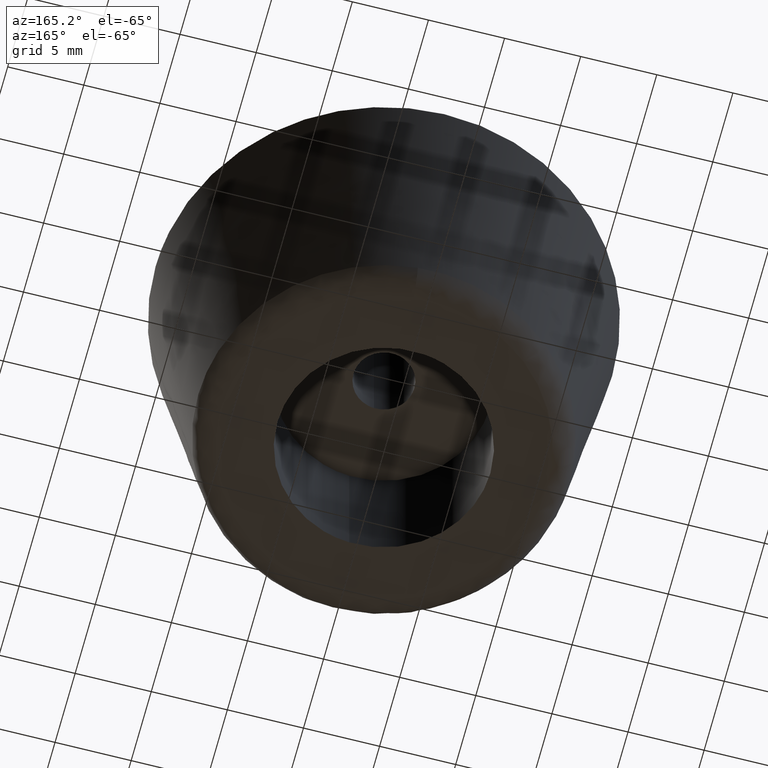
[diagram: clean part render]
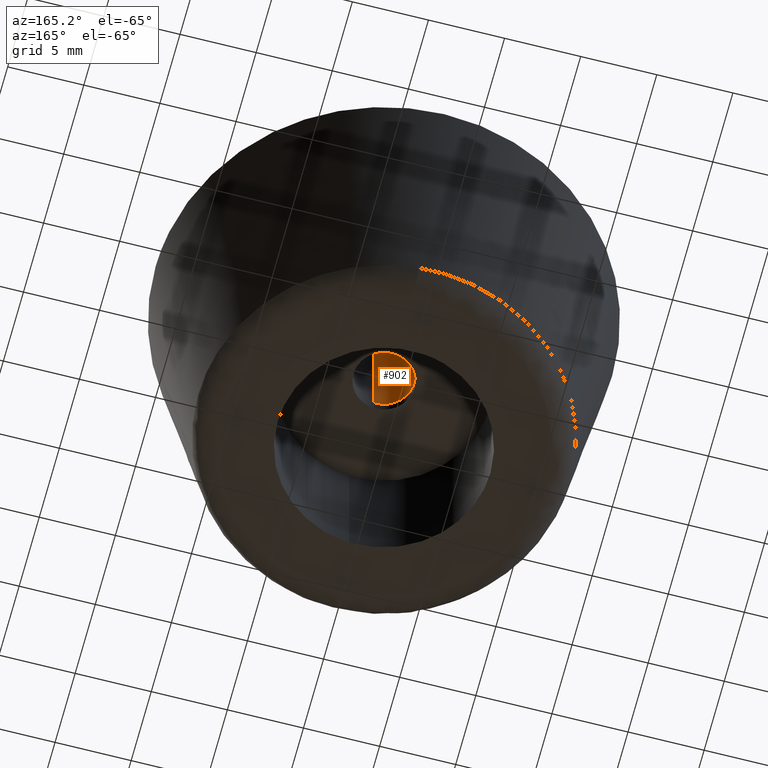
[diagram: same view with one face highlighted and labeled with its STEP entity id]
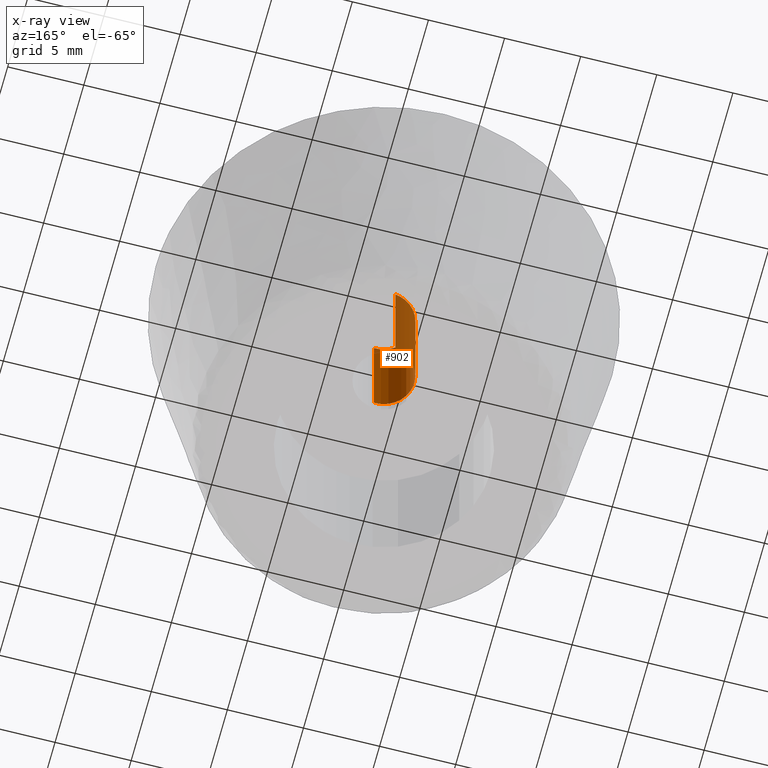
[diagram: x-ray of the same camera — body ghosted, the highlighted face saturated]
A machine part, auxiliary view. The second image highlights one B-rep face of the part: STEP entity #902.
The next image is the same camera in x-ray: the body ghosted, the highlighted face saturated — about 38% of this face is hidden behind the body in this view.
In plain terms, the highlighted face is a freeform B-spline surface patch.
Its self-contained STEP definition (entity closure, byte-faithful):
#739=CARTESIAN_POINT('',(-0.236068469328979,1.986019052725495,19.0));
#740=VERTEX_POINT('',#739);
#758=CARTESIAN_POINT('',(-0.236068469328979,1.986019052725495,10.800000000000001));
#759=VERTEX_POINT('',#758);
#760=CARTESIAN_POINT('',(-0.236068469328979,1.986019052725495,19.0));
#761=CARTESIAN_POINT('',(-0.236068469328979,1.986019052725495,10.800000000000001));
#762=QUASI_UNIFORM_CURVE('',1,(#760,#761),.UNSPECIFIED.,.F.,.U.);
#763=EDGE_CURVE('',#740,#759,#762,.T.);
#782=CARTESIAN_POINT('',(0.122093436056999,-1.996269819653264,10.800000000000001));
#783=VERTEX_POINT('',#782);
#797=CARTESIAN_POINT('',(0.122093391733323,-1.996269822364052,18.999999999999972));
#798=VERTEX_POINT('',#797);
#799=CARTESIAN_POINT('',(0.122093391733323,-1.996269822364052,18.999999999999972));
#800=CARTESIAN_POINT('',(0.122093436056999,-1.996269819653264,10.800000000000001));
#801=QUASI_UNIFORM_CURVE('',1,(#799,#800),.UNSPECIFIED.,.F.,.U.);
#802=EDGE_CURVE('',#798,#783,#801,.T.);
#820=CARTESIAN_POINT('',(0.122097079069714,-1.996269596843733,19.205000000000009));
#821=CARTESIAN_POINT('',(-1.874172517774020,-2.118366675913447,19.205000000000005));
#822=CARTESIAN_POINT('',(-1.996269596843733,-0.122097079069714,19.205000000000009));
#823=CARTESIAN_POINT('',(-2.111572393465055,1.763086981679002,19.205000000000013));
#824=CARTESIAN_POINT('',(-0.236068469313517,1.986019052727332,19.205000000000013));
#825=CARTESIAN_POINT('',(0.122097079069714,-1.996269596843733,10.589874999999999));
#826=CARTESIAN_POINT('',(-1.874172517774020,-2.118366675913447,10.589874999999999));
#827=CARTESIAN_POINT('',(-1.996269596843733,-0.122097079069714,10.589874999999999));
#828=CARTESIAN_POINT('',(-2.111572393465055,1.763086981679002,10.589874999999999));
#829=CARTESIAN_POINT('',(-0.236068469313517,1.986019052727332,10.589874999999996));
#837=(BOUNDED_SURFACE()B_SPLINE_SURFACE(2,1,((#820,#825),(#821,#826),(#822,#827),(#823,#828),(#824,#829)),.UNSPECIFIED.,.F.,.F.,.U.)B_SPLINE_SURFACE_WITH_KNOTS((3,2,3),(2,2),(0.0,3.313708498984759,6.494868658010128),(0.0,8.615125000000010),.UNSPECIFIED.)GEOMETRIC_REPRESENTATION_ITEM()RATIONAL_B_SPLINE_SURFACE(((1.0,1.0),(0.707106781186548,0.707106781186548),(1.0,1.0),(0.718822509939086,0.718822509939086),(0.977505800795127,0.977505800795127)))REPRESENTATION_ITEM('')SURFACE());
#838=CARTESIAN_POINT('',(-2.0,0.0,19.0));
#839=VERTEX_POINT('',#838);
#840=CARTESIAN_POINT('',(-2.0,0.0,19.0));
#841=CARTESIAN_POINT('',(-2.000000000000000,1.776349051874881,18.999999999999996));
#842=CARTESIAN_POINT('',(-0.236068469328979,1.986019052725495,19.000000000000004));
#850=(BOUNDED_CURVE()B_SPLINE_CURVE(2,(#840,#841,#842),.UNSPECIFIED.,.F.,.U.)B_SPLINE_CURVE_WITH_KNOTS((3,3),(0.0,0.229562473513013),.UNSPECIFIED.)CURVE()GEOMETRIC_REPRESENTATION_ITEM()RATIONAL_B_SPLINE_CURVE((1.0,0.731050832855983,0.956026754182728))REPRESENTATION_ITEM(''));
#851=EDGE_CURVE('',#839,#740,#850,.T.);
#852=ORIENTED_EDGE('',*,*,#851,.F.);
#853=CARTESIAN_POINT('',(0.122093391733323,-1.996269822364053,18.999999999999975));
#854=CARTESIAN_POINT('',(0.061103677759777,-2.0,19.000000000000007));
#855=CARTESIAN_POINT('',(0.0,-2.0,19.0));
#856=CARTESIAN_POINT('',(-2.000000000000000,-2.000000000000000,18.999999999999993));
#857=CARTESIAN_POINT('',(-2.0,0.0,19.0));
#865=(BOUNDED_CURVE()B_SPLINE_CURVE(2,(#853,#854,#855,#856,#857),.UNSPECIFIED.,.F.,.U.)B_SPLINE_CURVE_WITH_KNOTS((3,2,3),(0.739333280955538,0.750000000000000,1.0),.UNSPECIFIED.)CURVE()GEOMETRIC_REPRESENTATION_ITEM()RATIONAL_B_SPLINE_CURVE((0.976072724738002,0.987503161299555,1.0,0.707106781186548,1.0))REPRESENTATION_ITEM(''));
#866=EDGE_CURVE('',#798,#839,#865,.T.);
#867=ORIENTED_EDGE('',*,*,#866,.F.);
#868=ORIENTED_EDGE('',*,*,#802,.T.);
#869=CARTESIAN_POINT('',(-2.0,0.0,10.800000000000001));
#870=VERTEX_POINT('',#869);
#871=CARTESIAN_POINT('',(0.122093436056999,-1.996269819653264,10.800000000000008));
#872=CARTESIAN_POINT('',(0.061103699983748,-2.000000000000000,10.799999999999999));
#873=CARTESIAN_POINT('',(0.0,-2.0,10.800000000000001));
#874=CARTESIAN_POINT('',(-2.000000000000000,-2.000000000000000,10.800000000000001));
#875=CARTESIAN_POINT('',(-2.0,0.0,10.800000000000001));
#883=(BOUNDED_CURVE()B_SPLINE_CURVE(2,(#871,#872,#873,#874,#875),.UNSPECIFIED.,.F.,.U.)B_SPLINE_CURVE_WITH_KNOTS((3,2,3),(0.739333277124436,0.750000000000000,1.0),.UNSPECIFIED.)CURVE()GEOMETRIC_REPRESENTATION_ITEM()RATIONAL_B_SPLINE_CURVE((0.976072716527199,0.987503156811140,1.0,0.707106781186548,1.0))REPRESENTATION_ITEM(''));
#884=EDGE_CURVE('',#783,#870,#883,.T.);
#885=ORIENTED_EDGE('',*,*,#884,.T.);
#886=CARTESIAN_POINT('',(-2.0,0.0,10.800000000000001));
#887=CARTESIAN_POINT('',(-2.000000000000000,1.776349051874881,10.800000000000001));
#888=CARTESIAN_POINT('',(-0.236068469328979,1.986019052725495,10.800000000000002));
#896=(BOUNDED_CURVE()B_SPLINE_CURVE(2,(#886,#887,#888),.UNSPECIFIED.,.F.,.U.)B_SPLINE_CURVE_WITH_KNOTS((3,3),(0.0,0.229562473513013),.UNSPECIFIED.)CURVE()GEOMETRIC_REPRESENTATION_ITEM()RATIONAL_B_SPLINE_CURVE((1.0,0.731050832855983,0.956026754182728))REPRESENTATION_ITEM(''));
#897=EDGE_CURVE('',#870,#759,#896,.T.);
#898=ORIENTED_EDGE('',*,*,#897,.T.);
#899=ORIENTED_EDGE('',*,*,#763,.F.);
#900=EDGE_LOOP('',(#852,#867,#868,#885,#898,#899));
#901=FACE_OUTER_BOUND('',#900,.T.);
#902=ADVANCED_FACE('',(#901),#837,.F.);